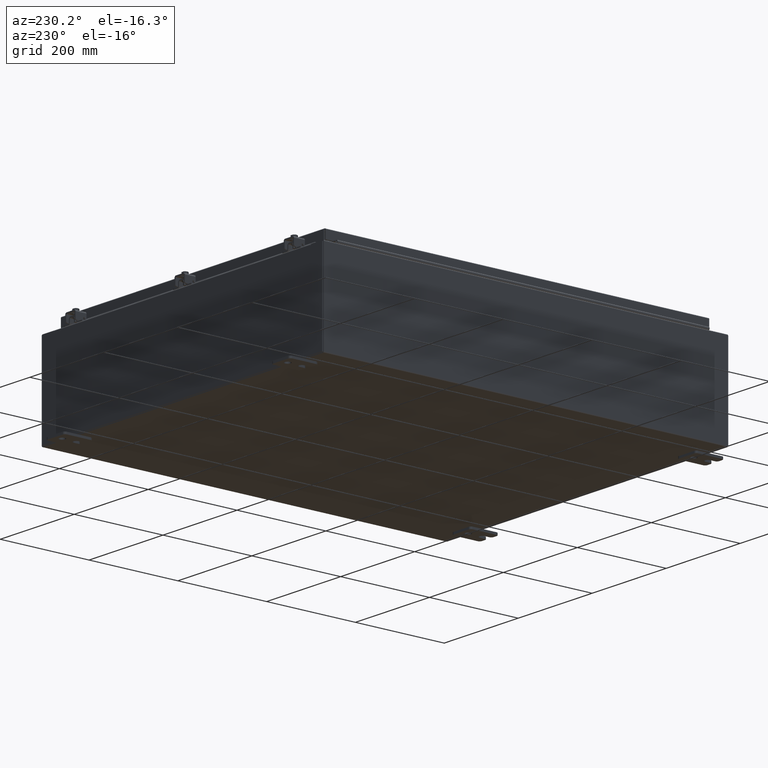
[diagram: clean part render]
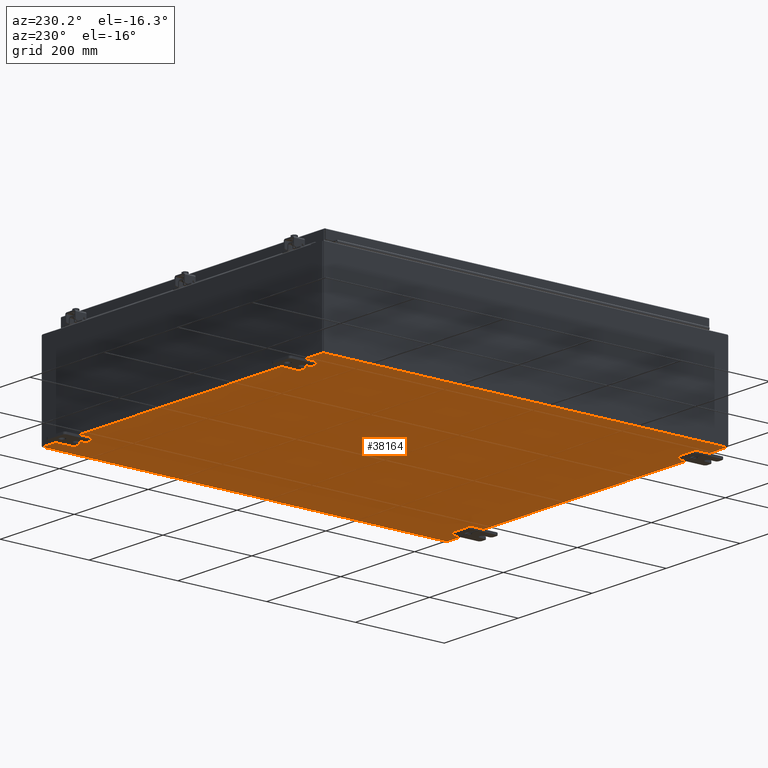
[diagram: same view with one face highlighted and labeled with its STEP entity id]
A machine part, auxiliary view. The second image highlights one B-rep face of the part: STEP entity #38164.
In plain terms, the highlighted planar face has unit normal (0, 0, -1).
Its self-contained STEP definition (entity closure, byte-faithful):
#912 = ORIENTED_EDGE ( 'NONE', *, *, #6399, .T. ) ;
#939 = DIRECTION ( 'NONE',  ( -1.000000000000000000, -0.0000000000000000000, -0.0000000000000000000 ) ) ;
#2356 = LINE ( 'NONE', #25911, #27889 ) ;
#2483 = AXIS2_PLACEMENT_3D ( 'NONE', #24603, #4671, #27978 ) ;
#4287 = DIRECTION ( 'NONE',  ( -0.0000000000000000000, 1.000000000000000000, -0.0000000000000000000 ) ) ;
#4614 = DIRECTION ( 'NONE',  ( 1.000000000000000000, 0.0000000000000000000, 0.0000000000000000000 ) ) ;
#4671 = DIRECTION ( 'NONE',  ( 0.0000000000000000000, 0.0000000000000000000, -1.000000000000000000 ) ) ;
#5074 = VECTOR ( 'NONE', #939, 39.37007874015748100 ) ;
#6399 = EDGE_CURVE ( 'NONE', #21617, #41058, #35764, .T. ) ;
#6901 = CARTESIAN_POINT ( 'NONE',  ( 14.91229999999999800, -17.92530000000000000, -0.07470000000000000300 ) ) ;
#7350 = VERTEX_POINT ( 'NONE', #39692 ) ;
#8284 = ORIENTED_EDGE ( 'NONE', *, *, #9399, .F. ) ;
#9399 = EDGE_CURVE ( 'NONE', #21617, #41044, #25105, .T. ) ;
#10250 = CARTESIAN_POINT ( 'NONE',  ( -14.91230000000000200, 17.92530000000000000, -0.07470000000000000300 ) ) ;
#14146 = CARTESIAN_POINT ( 'NONE',  ( -14.91230000000000200, -17.92530000000000000, -0.07469999999999994700 ) ) ;
#15378 = ORIENTED_EDGE ( 'NONE', *, *, #18277, .F. ) ;
#17507 = EDGE_CURVE ( 'NONE', #7350, #41044, #2356, .T. ) ;
#18277 = EDGE_CURVE ( 'NONE', #7350, #41058, #32745, .T. ) ;
#21187 = CARTESIAN_POINT ( 'NONE',  ( -15.00000000000000400, -17.92530000000000000, -0.07470000000000000300 ) ) ;
#21590 = CARTESIAN_POINT ( 'NONE',  ( -14.91230000000000200, -17.92530000000000000, -0.07469999999999994700 ) ) ;
#21617 = VERTEX_POINT ( 'NONE', #21590 ) ;
#22518 = DIRECTION ( 'NONE',  ( -0.0000000000000000000, -1.000000000000000000, 8.208677865577646300E-017 ) ) ;
#24321 = FACE_OUTER_BOUND ( 'NONE', #35405, .T. ) ;
#24603 = CARTESIAN_POINT ( 'NONE',  ( 0.0000000000000000000, 0.0000000000000000000, -0.07470000000000000300 ) ) ;
#25105 = LINE ( 'NONE', #21187, #32949 ) ;
#25871 = ORIENTED_EDGE ( 'NONE', *, *, #17507, .T. ) ;
#25911 = CARTESIAN_POINT ( 'NONE',  ( 14.91229999999999800, 17.92530000000000000, -0.07470000000000251400 ) ) ;
#26840 = VECTOR ( 'NONE', #4287, 39.37007874015748100 ) ;
#27889 = VECTOR ( 'NONE', #22518, 39.37007874015748100 ) ;
#27978 = DIRECTION ( 'NONE',  ( -1.000000000000000000, 0.0000000000000000000, -0.0000000000000000000 ) ) ;
#32745 = LINE ( 'NONE', #37562, #5074 ) ;
#32949 = VECTOR ( 'NONE', #4614, 39.37007874015748100 ) ;
#35405 = EDGE_LOOP ( 'NONE', ( #8284, #912, #15378, #25871 ) ) ;
#35764 = LINE ( 'NONE', #14146, #26840 ) ;
#37562 = CARTESIAN_POINT ( 'NONE',  ( -15.00000000000000400, 17.92530000000000000, -0.07470000000000000300 ) ) ;
#38164 = ADVANCED_FACE ( 'NONE', ( #24321 ), #41292, .T. ) ;
#39692 = CARTESIAN_POINT ( 'NONE',  ( 14.91229999999999800, 17.92530000000000000, -0.07470000000000251400 ) ) ;
#41044 = VERTEX_POINT ( 'NONE', #6901 ) ;
#41058 = VERTEX_POINT ( 'NONE', #10250 ) ;
#41292 = PLANE ( 'NONE',  #2483 ) ;